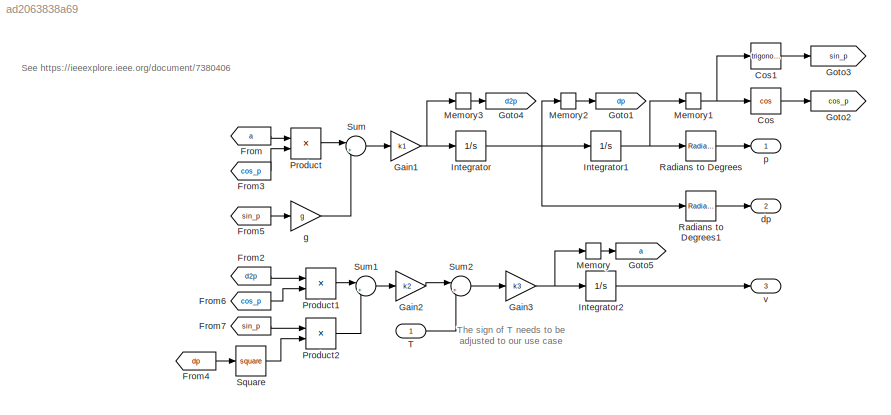
MODEL slx_ad2063838a69
KIND model
CONFIG AbsTol = auto
CONFIG EnableMultiTasking = off
CONFIG FixedStep = auto
CONFIG MaxStep = 1e-3
CONFIG MinStep = auto
CONFIG RelTol = 1e-3
CONFIG SampleTimeConstraint = Unconstrained
CONFIG SolverName = ode23t
CONFIG StartTime = 0.0
CONFIG StopTime = 10.0
BLOCK [Trigonometry] Cos
  Operator = cos
BLOCK [Trigonometry] Cos1
BLOCK [From] From
  GotoTag = a
BLOCK [From] From2
  GotoTag = d2p
BLOCK [From] From3
  GotoTag = cos_p
BLOCK [From] From4
  GotoTag = dp
BLOCK [From] From5
  GotoTag = sin_p
BLOCK [From] From6
  GotoTag = cos_p
BLOCK [From] From7
  GotoTag = sin_p
BLOCK [Gain] Gain1
  Gain = k1
BLOCK [Gain] Gain2
  Gain = k2
BLOCK [Gain] Gain3
  Gain = k3
BLOCK [Goto] Goto1
  GotoTag = dp
BLOCK [Goto] Goto2
  GotoTag = cos_p
BLOCK [Goto] Goto3
  GotoTag = sin_p
BLOCK [Goto] Goto4
  GotoTag = d2p
BLOCK [Goto] Goto5
  GotoTag = a
BLOCK [Integrator] Integrator
  ContinuousStateAttributes = 'dp'
BLOCK [Integrator] Integrator1
  ContinuousStateAttributes = 'p'
  InitialCondition = p0 * pi/180
BLOCK [Integrator] Integrator2
  ContinuousStateAttributes = 'v'
BLOCK [Memory] Memory
  InheritSampleTime = on
  LinearizeAsDelay = on
  LinearizeMemory = on
BLOCK [Memory] Memory1
  InheritSampleTime = on
  InitialCondition = p0 * pi/180
  LinearizeAsDelay = on
  LinearizeMemory = on
BLOCK [Memory] Memory2
  InheritSampleTime = on
  LinearizeAsDelay = on
  LinearizeMemory = on
BLOCK [Memory] Memory3
  InheritSampleTime = on
  LinearizeAsDelay = on
  LinearizeMemory = on
BLOCK [Product] Product
BLOCK [Product] Product1
BLOCK [Product] Product2
BLOCK [Reference] Radians to Degrees  REF=simulink_extras/Transformations/Radians
to Degrees
  SourceBlock = simulink_extras/Transformations/Radians\nto Degrees
  SourceType = RadiansToDegrees
BLOCK [Reference] Radians to Degrees1  REF=simulink_extras/Transformations/Radians
to Degrees
  SourceBlock = simulink_extras/Transformations/Radians\nto Degrees
  SourceType = RadiansToDegrees
BLOCK [Math] Square
  Operator = square
BLOCK [Sum] Sum
  Inputs = |++
BLOCK [Sum] Sum1
  Inputs = |+-
BLOCK [Sum] Sum2
  Inputs = |++
BLOCK [Inport] T
BLOCK [Outport] dp
  Port = 2
BLOCK [Gain] g
  Gain = g
BLOCK [Outport] p
BLOCK [Outport] v
  Port = 3
ANNOTATION (root): See https://ieeexplore.ieee.org/document/7380406
ANNOTATION (root): The sign of T needs to be adjusted to our use case
LINE Cos1:1 -> Goto3:1
LINE Cos:1 -> Goto2:1
LINE From2:1 -> Product1:1
LINE From3:1 -> Product:2
LINE From4:1 -> Square:1
LINE From5:1 -> g:1
LINE From6:1 -> Product1:2
LINE From7:1 -> Product2:1
LINE From:1 -> Product:1
NET Gain1:1 -> Integrator:1, Memory3:1
LINE Gain2:1 -> Sum2:1
NET Gain3:1 -> Integrator2:1, Memory:1
NET Integrator1:1 -> Memory1:1, Radians to Degrees:1
LINE Integrator2:1 -> v:1
NET Integrator:1 -> Integrator1:1, Memory2:1, Radians to Degrees1:1
NET Memory1:1 -> Cos1:1, Cos:1
LINE Memory2:1 -> Goto1:1
LINE Memory3:1 -> Goto4:1
LINE Memory:1 -> Goto5:1
LINE Product1:1 -> Sum1:1
LINE Product2:1 -> Sum1:2
LINE Product:1 -> Sum:1
LINE Radians to Degrees1:1 -> dp:1
LINE Radians to Degrees:1 -> p:1
LINE Square:1 -> Product2:2
LINE Sum1:1 -> Gain2:1
LINE Sum2:1 -> Gain3:1
LINE Sum:1 -> Gain1:1
LINE T:1 -> Sum2:2
LINE g:1 -> Sum:2
note: NET lines group one-source signal fan-out (src -> all destinations, sorted); 1:1 wires keep LINE
